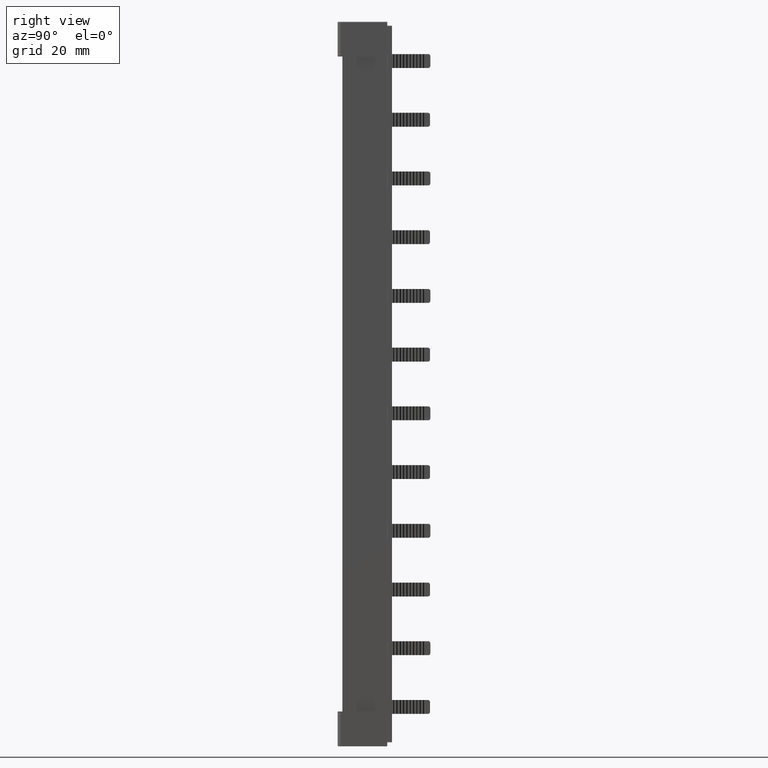
[diagram: clean part render]
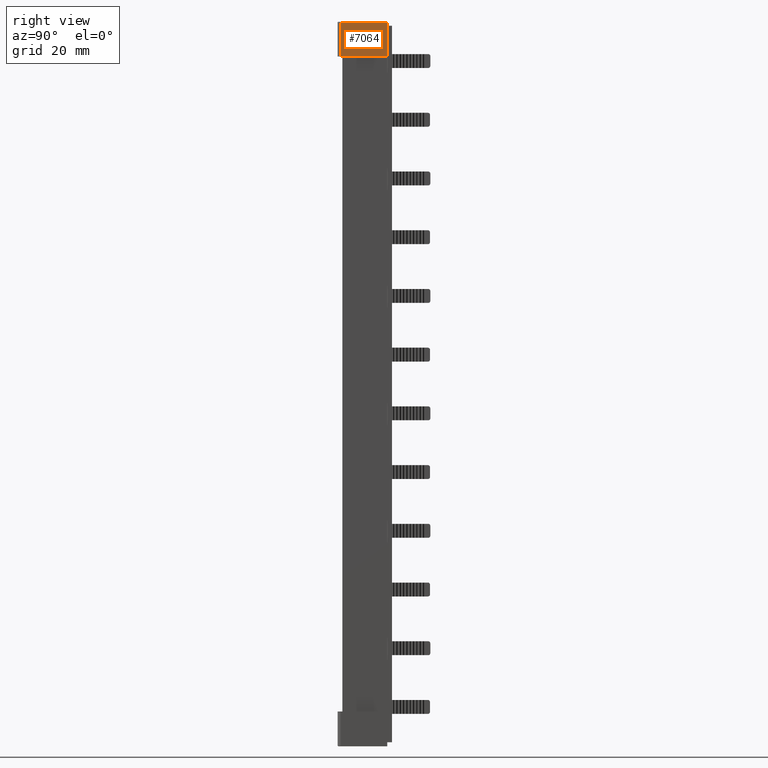
[diagram: same view with one face highlighted and labeled with its STEP entity id]
A machine part, right view. The second image highlights one B-rep face of the part: STEP entity #7064.
In plain terms, the highlighted planar face has unit normal (-1, 0, 0).
Its self-contained STEP definition (entity closure, byte-faithful):
#3559 = DIRECTION ( 'NONE',  ( -1.000000000000000000, 0.0000000000000000000, 6.924738560343257600E-013 ) ) ;
#3566 = PLANE ( 'NONE',  #12200 ) ;
#3572 = FACE_OUTER_BOUND ( 'NONE', #8546, .T. ) ;
#3574 = DIRECTION ( 'NONE',  ( 6.924738560343257600E-013, 0.0000000000000000000, 1.000000000000000000 ) ) ;
#3594 = CARTESIAN_POINT ( 'NONE',  ( 10.70000000027151700, -0.3999999999998344900, 208.4999999999926400 ) ) ;
#4550 = VECTOR ( 'NONE', #18005, 1000.000000000000000 ) ;
#4856 = VECTOR ( 'NONE', #19233, 1000.000000000000000 ) ;
#4986 = VECTOR ( 'NONE', #19721, 1000.000000000000000 ) ;
#5012 = VECTOR ( 'NONE', #19829, 1000.000000000000000 ) ;
#7064 = ADVANCED_FACE ( 'NONE', ( #3572 ), #3566, .F. ) ;
#7883 = EDGE_CURVE ( 'NONE', #14193, #14037, #17999, .T. ) ;
#8231 = EDGE_CURVE ( 'NONE', #14128, #14037, #19268, .T. ) ;
#8402 = EDGE_CURVE ( 'NONE', #14074, #14128, #19700, .T. ) ;
#8546 = EDGE_LOOP ( 'NONE', ( #12847, #12765, #12806, #12780 ) ) ;
#11869 = EDGE_CURVE ( 'NONE', #14193, #14074, #19741, .T. ) ;
#12200 = AXIS2_PLACEMENT_3D ( 'NONE', #3594, #3559, #3574 ) ;
#12765 = ORIENTED_EDGE ( 'NONE', *, *, #11869, .F. ) ;
#12780 = ORIENTED_EDGE ( 'NONE', *, *, #8231, .F. ) ;
#12806 = ORIENTED_EDGE ( 'NONE', *, *, #7883, .T. ) ;
#12847 = ORIENTED_EDGE ( 'NONE', *, *, #8402, .F. ) ;
#14037 = VERTEX_POINT ( 'NONE', #21881 ) ;
#14074 = VERTEX_POINT ( 'NONE', #21925 ) ;
#14128 = VERTEX_POINT ( 'NONE', #21995 ) ;
#14193 = VERTEX_POINT ( 'NONE', #22035 ) ;
#17983 = CARTESIAN_POINT ( 'NONE',  ( 10.70000000027151500, 13.60000000000009400, 208.4999999999926400 ) ) ;
#17999 = LINE ( 'NONE', #17983, #4550 ) ;
#18005 = DIRECTION ( 'NONE',  ( -0.0000000000000000000, 0.0000000000000000000, 1.000000000000000000 ) ) ;
#19233 = DIRECTION ( 'NONE',  ( 0.0000000000000000000, 1.000000000000000000, -0.0000000000000000000 ) ) ;
#19235 = CARTESIAN_POINT ( 'NONE',  ( 10.70000000027864900, -0.3999999999998344900, 218.7999999999926200 ) ) ;
#19268 = LINE ( 'NONE', #19235, #4856 ) ;
#19700 = LINE ( 'NONE', #19717, #4986 ) ;
#19717 = CARTESIAN_POINT ( 'NONE',  ( 10.70000000027151700, -0.3999999999998344900, 208.4999999999926400 ) ) ;
#19721 = DIRECTION ( 'NONE',  ( 6.924738560343257600E-013, 0.0000000000000000000, 1.000000000000000000 ) ) ;
#19741 = LINE ( 'NONE', #19745, #5012 ) ;
#19745 = CARTESIAN_POINT ( 'NONE',  ( 10.70000000027151500, -0.3999999999998344900, 208.4999999999925800 ) ) ;
#19829 = DIRECTION ( 'NONE',  ( -0.0000000000000000000, -1.000000000000000000, -0.0000000000000000000 ) ) ;
#21881 = CARTESIAN_POINT ( 'NONE',  ( 10.70000000027508200, 13.60000000000009400, 218.7999999999926800 ) ) ;
#21925 = CARTESIAN_POINT ( 'NONE',  ( 10.70000000027151700, -0.3999999999998344900, 208.4999999999925800 ) ) ;
#21995 = CARTESIAN_POINT ( 'NONE',  ( 10.70000000027864900, -0.3999999999998344900, 218.7999999999926200 ) ) ;
#22035 = CARTESIAN_POINT ( 'NONE',  ( 10.70000000027151500, 13.60000000000009400, 208.4999999999927800 ) ) ;